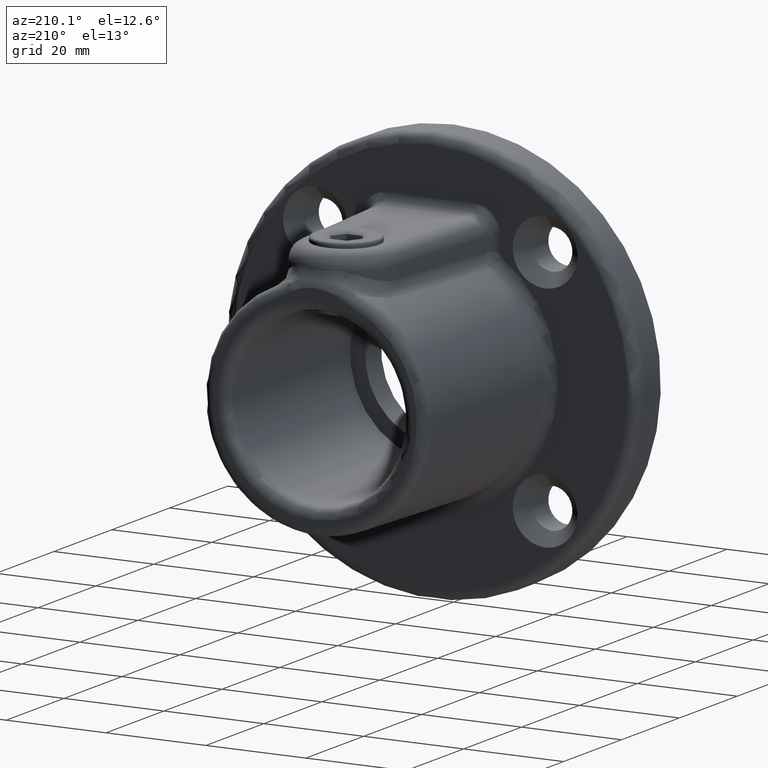
[diagram: clean part render]
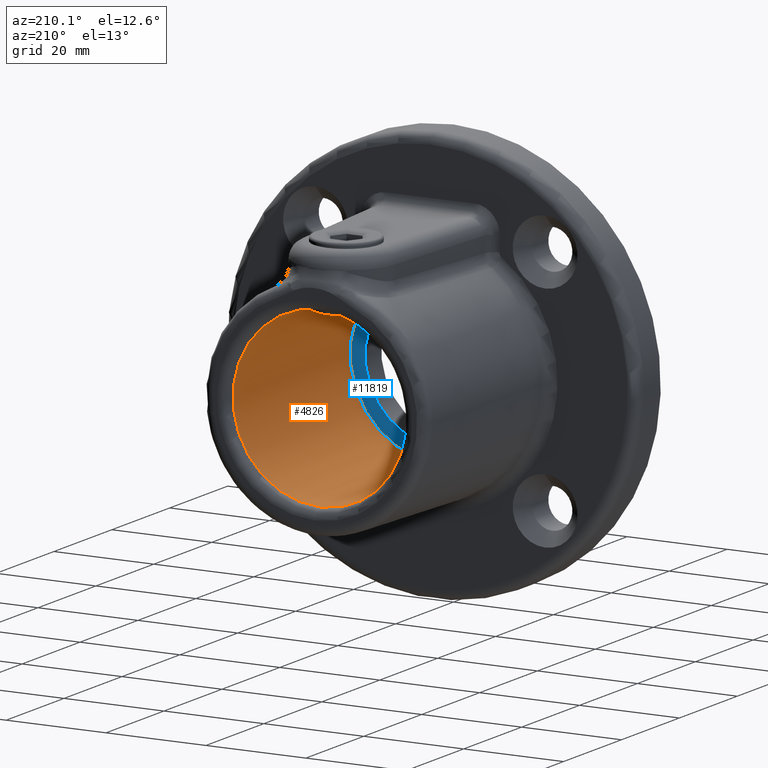
[diagram: same view with the hole feature highlighted: cylindrical wall and planar end face, labeled with their STEP entity ids]
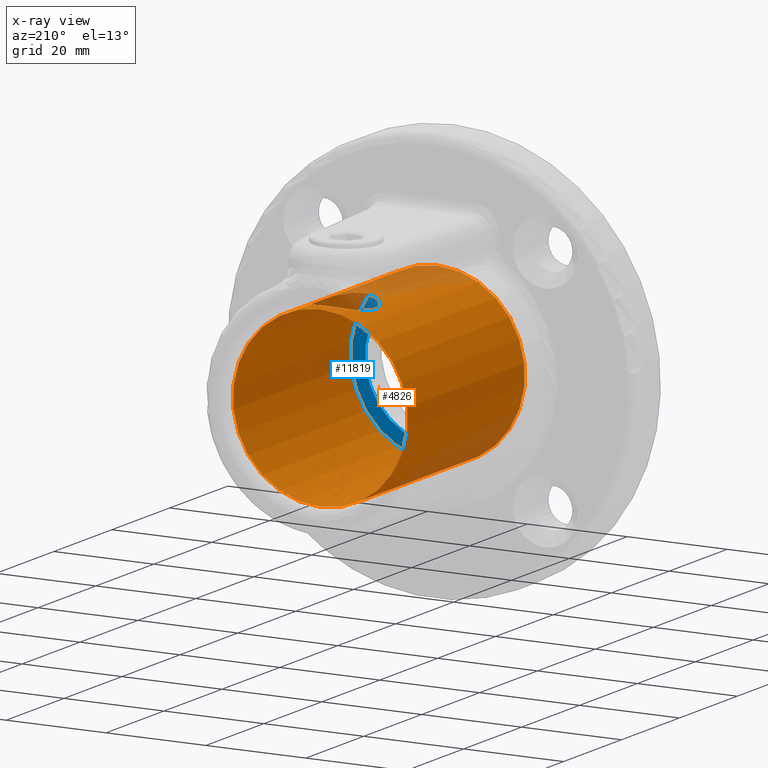
[diagram: x-ray of the same camera — body ghosted, the hole faces saturated]
A machine part, auxiliary view. The highlighted faces form one hole feature of diameter 35 mm: the cylindrical wall (entity #4826, orange) and its adjacent planar end face (entity #11819, blue) — they share a circular edge in the B-rep.
The next image is the same camera in x-ray (body ghosted, the hole faces saturated) — the bore reads through the body.
Wall:
#318 = CARTESIAN_POINT ( 'NONE',  ( 5.520148628927568524, 34.90840214221061188, 16.60674524931886964 ) ) ;
#524 = CARTESIAN_POINT ( 'NONE',  ( 2.091340165617908475, 31.47970825635548664, 17.37551845222727209 ) ) ;
#573 = CARTESIAN_POINT ( 'NONE',  ( 5.698867103687681457, 35.46035870104368826, 16.54619288792362752 ) ) ;
#603 = AXIS2_PLACEMENT_3D ( 'NONE', #7397, #8489, #9604 ) ;
#619 = CARTESIAN_POINT ( 'NONE',  ( -5.007922870987533415, 40.12525354011594914, 16.76851155093762813 ) ) ;
#666 = CARTESIAN_POINT ( 'NONE',  ( -3.902587237339677717, 32.55859640192297633, 17.06157409139820302 ) ) ;
#721 = CARTESIAN_POINT ( 'NONE',  ( -1.906823802610393859, 31.41324574862805363, 17.39680847275073816 ) ) ;
#777 = CARTESIAN_POINT ( 'NONE',  ( 0.3894018046664372568, 42.89034938523376894, 17.49673938233337722 ) ) ;
#1069 = CARTESIAN_POINT ( 'NONE',  ( 4.607859233063393845E-16, 31.10000000000000853, 17.50000000000000000 ) ) ;
#1163 = CIRCLE ( 'NONE', #8192, 17.50000000000000355 ) ;
#1630 = FACE_OUTER_BOUND ( 'NONE', #2392, .T. ) ;
#1645 = CARTESIAN_POINT ( 'NONE',  ( 2.964156790354443682, 31.88416552537808712, 17.25020718912133688 ) ) ;
#1694 = CARTESIAN_POINT ( 'NONE',  ( 3.605308034083546609, 41.68603785650869042, 17.12766721121091251 ) ) ;
#1745 = CARTESIAN_POINT ( 'NONE',  ( -5.288707643900314892, 39.62232220644583691, 16.68198603121282986 ) ) ;
#1797 = CARTESIAN_POINT ( 'NONE',  ( 5.709351544684439617, 38.53725955426851613, 16.54266552196742879 ) ) ;
#1845 = CARTESIAN_POINT ( 'NONE',  ( -3.899121618900547315, 41.44469741295415588, 17.06240245685471280 ) ) ;
#2253 = CARTESIAN_POINT ( 'NONE',  ( 0.000000000000000000, 5.499999999999998224, 0.000000000000000000 ) ) ;
#2335 = FACE_BOUND ( 'NONE', #3978, .T. ) ;
#2392 = EDGE_LOOP ( 'NONE', ( #7471 ) ) ;
#2569 = CARTESIAN_POINT ( 'NONE',  ( 0.7786481149555319892, 31.13884663407102593, 17.48679495466377176 ) ) ;
#2689 = B_SPLINE_CURVE_WITH_KNOTS ( 'NONE', 3,
 ( #9226, #3685, #2569, #12571, #6005, #13671, #524, #5953, #1645, #3734, #10167, #11396, #11301, #4804, #12384, #5816, #13476, #318, #5001, #573, #8268, #13867, #13913, #11675, #9429, #1797, #12722, #4060, #2957, #9528, #6098, #10476, #6251, #11632, #1694, #2904, #4015, #11721, #9380, #5148, #12820, #777, #2810, #8460, #6048, #4946, #7362, #12620, #9331, #2764, #8315, #1845, #10575, #10418, #8362, #3868, #619, #10626, #1745, #6153, #9478, #5052, #8410, #10528, #11535, #2857, #13718, #7169, #13768, #3908, #3963, #11580, #7218, #12667, #13825, #7273, #666, #5098, #12771, #6202, #7321, #721, #5439, #3257, #13144, #3392, #1069 ),
 .UNSPECIFIED., .T., .F.,
 ( 4, 2, 2, 2, 2, 2, 2, 2, 2, 2, 2, 2, 2, 2, 2, 2, 2, 2, 2, 2, 2, 1, 2, 2, 2, 2, 2, 2, 2, 2, 2, 2, 2, 2, 2, 2, 2, 2, 2, 2, 2, 2, 2, 4 ),
 ( 0.000000000000000000, 0.001161307898063125696, 0.001741961847094686917, 0.002322615796126248355, 0.003483923694189370798, 0.004064577643220932887, 0.004645231592252494976, 0.005806539490315622623, 0.006967847388378750270, 0.007548501337410314094, 0.008129155286441877917, 0.009290463184505003830, 0.01045177108256813321, 0.01161307898063125739, 0.01277438687869438330, 0.01335504082772593845, 0.01393569477675749187, 0.01509700267482060217, 0.01625831057288371073, 0.01741961847094682103, 0.01800027241997837618, 0.01858092636900993133, 0.01916158031804148301, 0.01974223426707304163, 0.02090354216513615540, 0.02206485006319926570, 0.02322615796126237947, 0.02380681191029394850, 0.02438746585932551406, 0.02496811980835707961, 0.02554877375738864864, 0.02671008165545180058, 0.02729073560448335919, 0.02787138955351492128, 0.02903269745157803158, 0.02961335140060959714, 0.03019400534964115923, 0.03135531324770428341, 0.03251662114576741452, 0.03367792904383053870, 0.03483923694189366288, 0.03541989089092522497, 0.03600054483995678706, 0.03716185273801991817 ),
 .UNSPECIFIED. ) ;
#2764 = CARTESIAN_POINT ( 'NONE',  ( -2.966556538485224603, 42.11435341284496303, 17.24977456532706555 ) ) ;
#2810 = CARTESIAN_POINT ( 'NONE',  ( 0.002292598453552566022, 42.90949623825553516, 17.50320857073235103 ) ) ;
#2857 = CARTESIAN_POINT ( 'NONE',  ( -5.899989282783097977, 37.19474187145959121, 16.47544009922569686 ) ) ;
#2904 = CARTESIAN_POINT ( 'NONE',  ( 2.968069151266385042, 42.11348827382644089, 17.24951580862249756 ) ) ;
#2957 = CARTESIAN_POINT ( 'NONE',  ( 5.115488878492695513, 39.96450146680331983, 16.73711389683603556 ) ) ;
#3257 = CARTESIAN_POINT ( 'NONE',  ( -1.347165562492359303, 31.25261156277098351, 17.44910296630886748 ) ) ;
#3392 = CARTESIAN_POINT ( 'NONE',  ( -0.3928820710436239927, 31.10000000000000853, 17.50000000000000000 ) ) ;
#3685 = CARTESIAN_POINT ( 'NONE',  ( 0.3928820710436221053, 31.10000000000000853, 17.50000000000000355 ) ) ;
#3734 = CARTESIAN_POINT ( 'NONE',  ( 3.443560483131325789, 32.20532710590182290, 17.15862347583193426 ) ) ;
#3868 = CARTESIAN_POINT ( 'NONE',  ( -4.795240581994476337, 40.44269791479887743, 16.83056561368281123 ) ) ;
#3908 = CARTESIAN_POINT ( 'NONE',  ( -5.699765120184849820, 35.46364546170411813, 16.54588356084189726 ) ) ;
#3963 = CARTESIAN_POINT ( 'NONE',  ( -5.586408425058870364, 35.09218748273070076, 16.58449957468253544 ) ) ;
#3978 = EDGE_LOOP ( 'NONE', ( #12943 ) ) ;
#4015 = CARTESIAN_POINT ( 'NONE',  ( 2.622917317344097388, 42.29889625834729827, 17.30602759313087802 ) ) ;
#4060 = CARTESIAN_POINT ( 'NONE',  ( 5.298430147836457493, 39.62445906564988718, 16.67936793269030815 ) ) ;
#4380 = CARTESIAN_POINT ( 'NONE',  ( 0.000000000000000000, 31.10000000000000853, 17.50000000000000355 ) ) ;
#4414 = VERTEX_POINT ( 'NONE', #11144 ) ;
#4804 = CARTESIAN_POINT ( 'NONE',  ( 4.443296251178798784, 33.09962968994481258, 16.92880218576828710 ) ) ;
#4826 = ADVANCED_FACE ( 'NONE', ( #14155, #2335, #1630 ), #11249, .F. ) ;
#4879 = AXIS2_PLACEMENT_3D ( 'NONE', #9769, #13100, #13190 ) ;
#4946 = CARTESIAN_POINT ( 'NONE',  ( -0.9659375319494413192, 42.82366372593288162, 17.47437421815144631 ) ) ;
#5001 = CARTESIAN_POINT ( 'NONE',  ( 5.585506482384215765, 35.08958147774122693, 16.58480336588625192 ) ) ;
#5052 = CARTESIAN_POINT ( 'NONE',  ( -5.708452837546479586, 38.54037846957383096, 16.54297614554116436 ) ) ;
#5098 = CARTESIAN_POINT ( 'NONE',  ( -3.601299749620499036, 32.31088731809459347, 17.12851239788102120 ) ) ;
#5148 = CARTESIAN_POINT ( 'NONE',  ( 0.9714140986671822020, 42.82274046020645386, 17.47406635503882555 ) ) ;
#5439 = CARTESIAN_POINT ( 'NONE',  ( -1.534886354108298878, 31.29983123413032686, 17.43356090796557822 ) ) ;
#5816 = CARTESIAN_POINT ( 'NONE',  ( 5.117626124809385502, 34.03858129481027817, 16.73649735596070087 ) ) ;
#5953 = CARTESIAN_POINT ( 'NONE',  ( 2.626326032745418537, 31.70266953430030910, 17.30554224107963535 ) ) ;
#6005 = CARTESIAN_POINT ( 'NONE',  ( 1.534998738337611135, 31.29985695810995949, 17.43355236112579831 ) ) ;
#6048 = CARTESIAN_POINT ( 'NONE',  ( -0.7714576209906147675, 42.85257418977663235, 17.48405853756632311 ) ) ;
#6098 = CARTESIAN_POINT ( 'NONE',  ( 4.681872197382594969, 40.59542566917136241, 16.86256397871454382 ) ) ;
#6153 = CARTESIAN_POINT ( 'NONE',  ( -5.372401816163802302, 39.44641894855348596, 16.65513307283454481 ) ) ;
#6202 = CARTESIAN_POINT ( 'NONE',  ( -2.626457978606445476, 31.70272311195482828, 17.30552536664703211 ) ) ;
#6251 = CARTESIAN_POINT ( 'NONE',  ( 4.307299305478201390, 41.03658361902950702, 16.96221397343827775 ) ) ;
#6512 = DIRECTION ( 'NONE',  ( 0.000000000000000000, 0.000000000000000000, 1.000000000000000000 ) ) ;
#7169 = CARTESIAN_POINT ( 'NONE',  ( -5.861977899131569636, 36.22638718796656576, 16.48920020654733776 ) ) ;
#7218 = CARTESIAN_POINT ( 'NONE',  ( -5.299242683377969776, 34.37777584932698005, 16.67909551018069791 ) ) ;
#7273 = CARTESIAN_POINT ( 'NONE',  ( -4.443294519481567839, 33.09956580888702149, 16.92881069167182773 ) ) ;
#7321 = CARTESIAN_POINT ( 'NONE',  ( -2.091246644016384604, 31.47966998636938385, 17.37553049279798856 ) ) ;
#7362 = CARTESIAN_POINT ( 'NONE',  ( -1.540096546698866975, 42.70880728877288135, 17.43632017236847531 ) ) ;
#7397 = CARTESIAN_POINT ( 'NONE',  ( 0.000000000000000000, -49.49747468305834275, 0.000000000000000000 ) ) ;
#7471 = ORIENTED_EDGE ( 'NONE', *, *, #13950, .T. ) ;
#8192 = AXIS2_PLACEMENT_3D ( 'NONE', #2253, #14131, #6512 ) ;
#8268 = CARTESIAN_POINT ( 'NONE',  ( 5.746995520907176136, 35.65097302754647046, 16.52947910597811898 ) ) ;
#8315 = CARTESIAN_POINT ( 'NONE',  ( -3.603655624227095622, 41.68729502693019384, 17.12801349814421314 ) ) ;
#8362 = CARTESIAN_POINT ( 'NONE',  ( -4.681299806848188361, 40.59613458914272854, 16.86271958909120983 ) ) ;
#8410 = CARTESIAN_POINT ( 'NONE',  ( -5.822532476291346626, 37.97232477575001042, 16.50302211566540223 ) ) ;
#8460 = CARTESIAN_POINT ( 'NONE',  ( -0.3846297710934696301, 42.89065628321777979, 17.49684285078937052 ) ) ;
#8489 = DIRECTION ( 'NONE',  ( -0.000000000000000000, 1.000000000000000000, -0.000000000000000000 ) ) ;
#9190 = EDGE_LOOP ( 'NONE', ( #10105 ) ) ;
#9226 = CARTESIAN_POINT ( 'NONE',  ( 4.607859233063393845E-16, 31.10000000000000853, 17.50000000000000000 ) ) ;
#9331 = CARTESIAN_POINT ( 'NONE',  ( -2.621397828151870613, 42.29971757853574843, 17.30627752306956779 ) ) ;
#9380 = CARTESIAN_POINT ( 'NONE',  ( 1.544395816970212776, 42.70759571383447195, 17.43592277128108137 ) ) ;
#9429 = CARTESIAN_POINT ( 'NONE',  ( 5.861268591949242435, 37.77806972117526385, 16.48945141978682472 ) ) ;
#9478 = CARTESIAN_POINT ( 'NONE',  ( -5.596143636088418027, 38.90888558821988852, 16.58185189286330896 ) ) ;
#9528 = CARTESIAN_POINT ( 'NONE',  ( 4.796069364163462190, 40.44156105674414903, 16.83033037909666163 ) ) ;
#9604 = DIRECTION ( 'NONE',  ( 0.000000000000000000, 0.000000000000000000, 1.000000000000000000 ) ) ;
#9769 = CARTESIAN_POINT ( 'NONE',  ( 0.000000000000000000, 46.00000000000000000, 0.000000000000000000 ) ) ;
#10105 = ORIENTED_EDGE ( 'NONE', *, *, #11042, .T. ) ;
#10167 = CARTESIAN_POINT ( 'NONE',  ( 3.599517111654594981, 32.32126911426474436, 17.12648924402942185 ) ) ;
#10418 = CARTESIAN_POINT ( 'NONE',  ( -4.437974561455303224, 40.89244571660302086, 16.92838626726696205 ) ) ;
#10476 = CARTESIAN_POINT ( 'NONE',  ( 4.437695628878293164, 40.89279726168659579, 16.92846268018156408 ) ) ;
#10528 = CARTESIAN_POINT ( 'NONE',  ( -5.851427826407872068, 37.78040789255378229, 16.49276257147494462 ) ) ;
#10575 = CARTESIAN_POINT ( 'NONE',  ( -4.307863794326016738, 41.03601668139016567, 16.96207508765362348 ) ) ;
#10626 = CARTESIAN_POINT ( 'NONE',  ( -5.106664563393276346, 39.96124624677720050, 16.73860996394901690 ) ) ;
#10956 = VERTEX_POINT ( 'NONE', #10959 ) ;
#10959 = CARTESIAN_POINT ( 'NONE',  ( 0.000000000000000000, 46.00000000000000000, -17.50000000000000355 ) ) ;
#11042 = EDGE_CURVE ( 'NONE', #10956, #10956, #12732, .T. ) ;
#11144 = CARTESIAN_POINT ( 'NONE',  ( 0.000000000000000000, 5.499999999999998224, 17.50000000000000355 ) ) ;
#11249 = CYLINDRICAL_SURFACE ( 'NONE', #603, 17.50000000000000355 ) ;
#11301 = CARTESIAN_POINT ( 'NONE',  ( 4.038482456575234636, 32.69452650910972835, 17.02821087792512600 ) ) ;
#11396 = CARTESIAN_POINT ( 'NONE',  ( 3.896804595395563009, 32.56581911921364281, 17.06130332677588157 ) ) ;
#11535 = CARTESIAN_POINT ( 'NONE',  ( -5.890262473219557648, 37.39121871504560346, 16.47893300075239154 ) ) ;
#11580 = CARTESIAN_POINT ( 'NONE',  ( -5.520996575539166784, 34.91059698925464971, 16.60646400732711925 ) ) ;
#11632 = CARTESIAN_POINT ( 'NONE',  ( 3.900133729817439665, 41.44368038579533930, 17.06215337055235182 ) ) ;
#11675 = CARTESIAN_POINT ( 'NONE',  ( 5.900270039276863443, 37.38389093343291592, 16.47533955785939952 ) ) ;
#11721 = CARTESIAN_POINT ( 'NONE',  ( 1.912615877263639241, 42.59463111530953228, 17.39885590531371662 ) ) ;
#12233 = EDGE_CURVE ( 'NONE', #12467, #12467, #2689, .T. ) ;
#12384 = CARTESIAN_POINT ( 'NONE',  ( 4.686427512964494113, 33.39479611304597739, 16.86232006768761593 ) ) ;
#12467 = VERTEX_POINT ( 'NONE', #4380 ) ;
#12571 = CARTESIAN_POINT ( 'NONE',  ( 1.347184192077502063, 31.25261384026769562, 17.44910219526956752 ) ) ;
#12620 = CARTESIAN_POINT ( 'NONE',  ( -1.909197671258966666, 42.59586429765233362, 17.39925091867467799 ) ) ;
#12667 = CARTESIAN_POINT ( 'NONE',  ( -5.116221544703093649, 34.03631097120776872, 16.73691859517489888 ) ) ;
#12722 = CARTESIAN_POINT ( 'NONE',  ( 5.596995648020248737, 38.90651177148652096, 16.58156555882473171 ) ) ;
#12732 = CIRCLE ( 'NONE', #4879, 17.50000000000000355 ) ;
#12771 = CARTESIAN_POINT ( 'NONE',  ( -2.963829619918712410, 31.88405906852755933, 17.25024668910775816 ) ) ;
#12820 = CARTESIAN_POINT ( 'NONE',  ( 0.7766058249002845137, 42.85190009491851981, 17.48383272559933843 ) ) ;
#12943 = ORIENTED_EDGE ( 'NONE', *, *, #12233, .T. ) ;
#13100 = DIRECTION ( 'NONE',  ( -0.000000000000000000, 1.000000000000000000, -0.000000000000000000 ) ) ;
#13144 = CARTESIAN_POINT ( 'NONE',  ( -0.7788131162677667252, 31.13887675146082401, 17.48678494339041478 ) ) ;
#13190 = DIRECTION ( 'NONE',  ( 0.000000000000000000, 0.000000000000000000, -1.000000000000000000 ) ) ;
#13476 = CARTESIAN_POINT ( 'NONE',  ( 5.298783272956072210, 34.37698917980092261, 16.67923890563185196 ) ) ;
#13671 = CARTESIAN_POINT ( 'NONE',  ( 1.907185904657841213, 31.41336472017547976, 17.39677013068481060 ) ) ;
#13718 = CARTESIAN_POINT ( 'NONE',  ( -5.900021407585684052, 36.61149115344596083, 16.47542859504869028 ) ) ;
#13768 = CARTESIAN_POINT ( 'NONE',  ( -5.747771640677643568, 35.65428956129702698, 16.52920894211210978 ) ) ;
#13825 = CARTESIAN_POINT ( 'NONE',  ( -4.686189307372734092, 33.39461439935573850, 16.86237814578541006 ) ) ;
#13867 = CARTESIAN_POINT ( 'NONE',  ( 5.861551940116759063, 36.22312548487494865, 16.48935283698209986 ) ) ;
#13913 = CARTESIAN_POINT ( 'NONE',  ( 5.899727072488279767, 36.60785301823283078, 16.47553399903335958 ) ) ;
#13950 = EDGE_CURVE ( 'NONE', #4414, #4414, #1163, .T. ) ;
#14131 = DIRECTION ( 'NONE',  ( -0.000000000000000000, -1.000000000000000000, -0.000000000000000000 ) ) ;
#14155 = FACE_OUTER_BOUND ( 'NONE', #9190, .T. ) ;
End face:
#326 = FACE_OUTER_BOUND ( 'NONE', #4325, .T. ) ;
#1163 = CIRCLE ( 'NONE', #8192, 17.50000000000000355 ) ;
#1225 = CARTESIAN_POINT ( 'NONE',  ( 0.000000000000000000, 5.500000000000000000, 0.000000000000000000 ) ) ;
#1425 = PLANE ( 'NONE',  #5542 ) ;
#2253 = CARTESIAN_POINT ( 'NONE',  ( 0.000000000000000000, 5.499999999999998224, 0.000000000000000000 ) ) ;
#2541 = DIRECTION ( 'NONE',  ( 0.000000000000000000, -0.000000000000000000, 1.000000000000000000 ) ) ;
#4318 = EDGE_CURVE ( 'NONE', #13668, #13668, #12264, .T. ) ;
#4325 = EDGE_LOOP ( 'NONE', ( #13856 ) ) ;
#4414 = VERTEX_POINT ( 'NONE', #11144 ) ;
#4475 = EDGE_LOOP ( 'NONE', ( #9886 ) ) ;
#5542 = AXIS2_PLACEMENT_3D ( 'NONE', #13542, #9099, #2541 ) ;
#6512 = DIRECTION ( 'NONE',  ( 0.000000000000000000, 0.000000000000000000, 1.000000000000000000 ) ) ;
#6593 = CARTESIAN_POINT ( 'NONE',  ( 0.000000000000000000, 5.500000000000000000, -14.50000000000000000 ) ) ;
#7595 = FACE_BOUND ( 'NONE', #4475, .T. ) ;
#7622 = AXIS2_PLACEMENT_3D ( 'NONE', #1225, #9831, #7986 ) ;
#7986 = DIRECTION ( 'NONE',  ( 0.000000000000000000, 0.000000000000000000, -1.000000000000000000 ) ) ;
#8192 = AXIS2_PLACEMENT_3D ( 'NONE', #2253, #14131, #6512 ) ;
#9099 = DIRECTION ( 'NONE',  ( 0.000000000000000000, 1.000000000000000000, 0.000000000000000000 ) ) ;
#9831 = DIRECTION ( 'NONE',  ( 0.000000000000000000, -1.000000000000000000, 0.000000000000000000 ) ) ;
#9886 = ORIENTED_EDGE ( 'NONE', *, *, #4318, .T. ) ;
#11144 = CARTESIAN_POINT ( 'NONE',  ( 0.000000000000000000, 5.499999999999998224, 17.50000000000000355 ) ) ;
#11819 = ADVANCED_FACE ( 'NONE', ( #7595, #326 ), #1425, .T. ) ;
#12264 = CIRCLE ( 'NONE', #7622, 14.50000000000000000 ) ;
#13542 = CARTESIAN_POINT ( 'NONE',  ( 0.000000000000000000, 5.500000000000000000, 0.000000000000000000 ) ) ;
#13668 = VERTEX_POINT ( 'NONE', #6593 ) ;
#13856 = ORIENTED_EDGE ( 'NONE', *, *, #13950, .F. ) ;
#13950 = EDGE_CURVE ( 'NONE', #4414, #4414, #1163, .T. ) ;
#14131 = DIRECTION ( 'NONE',  ( -0.000000000000000000, -1.000000000000000000, -0.000000000000000000 ) ) ;